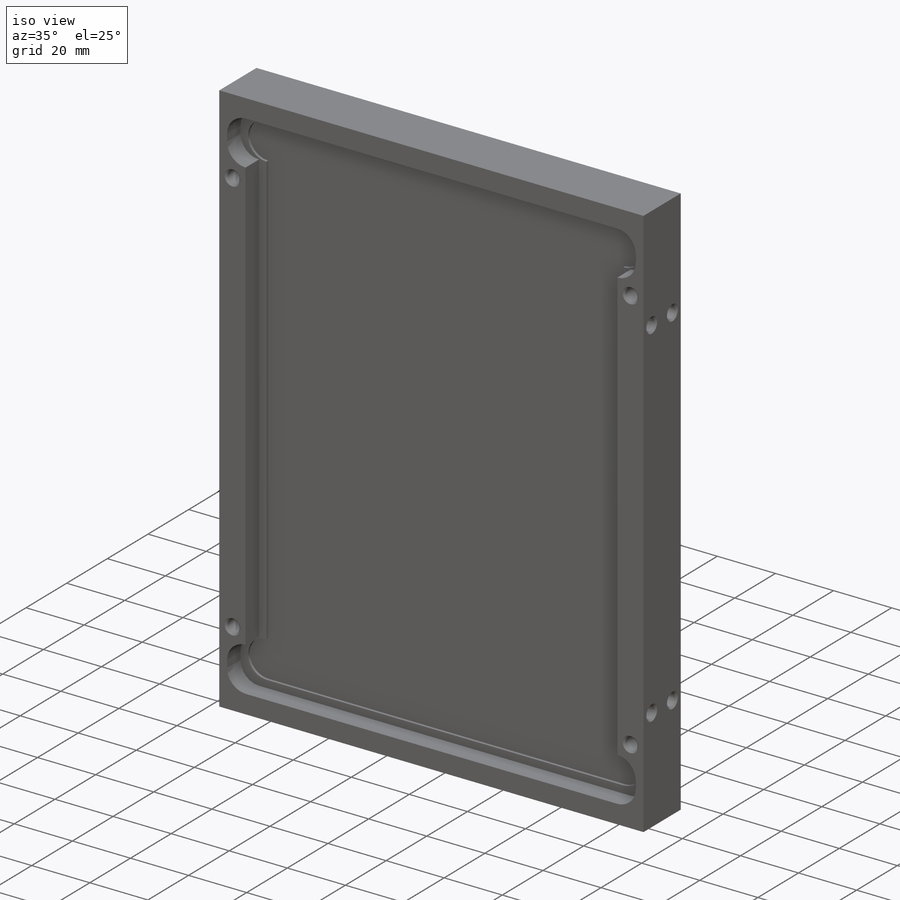
[diagram: iso view]
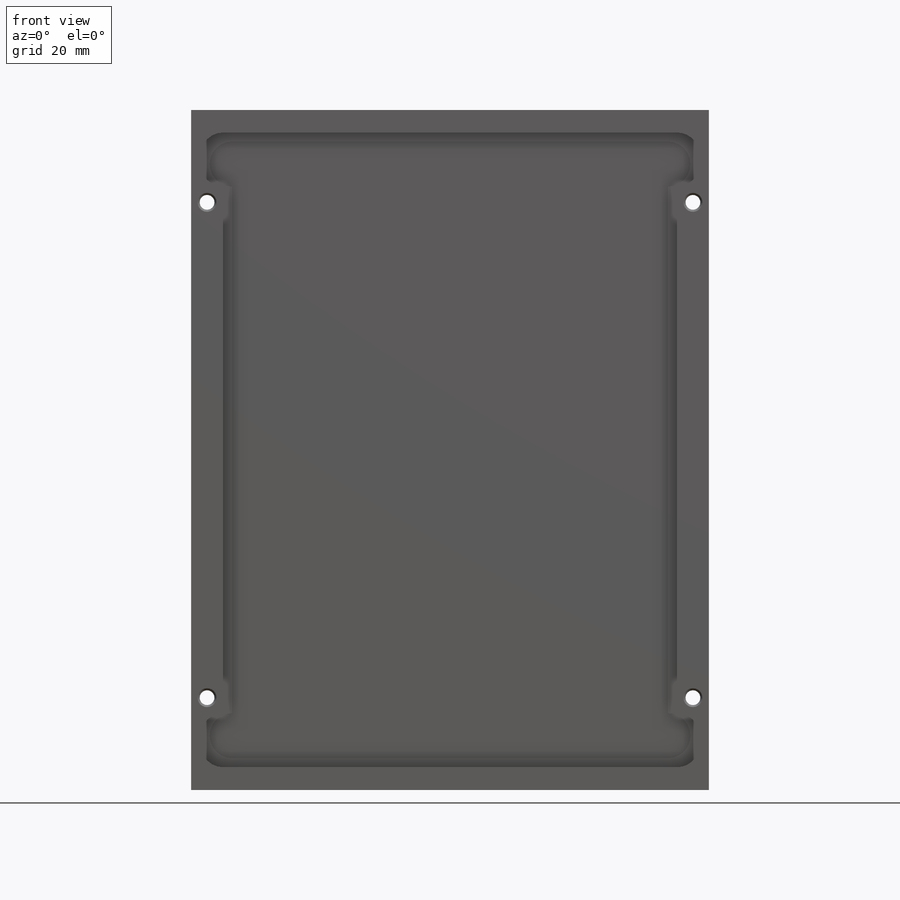
[diagram: front view]
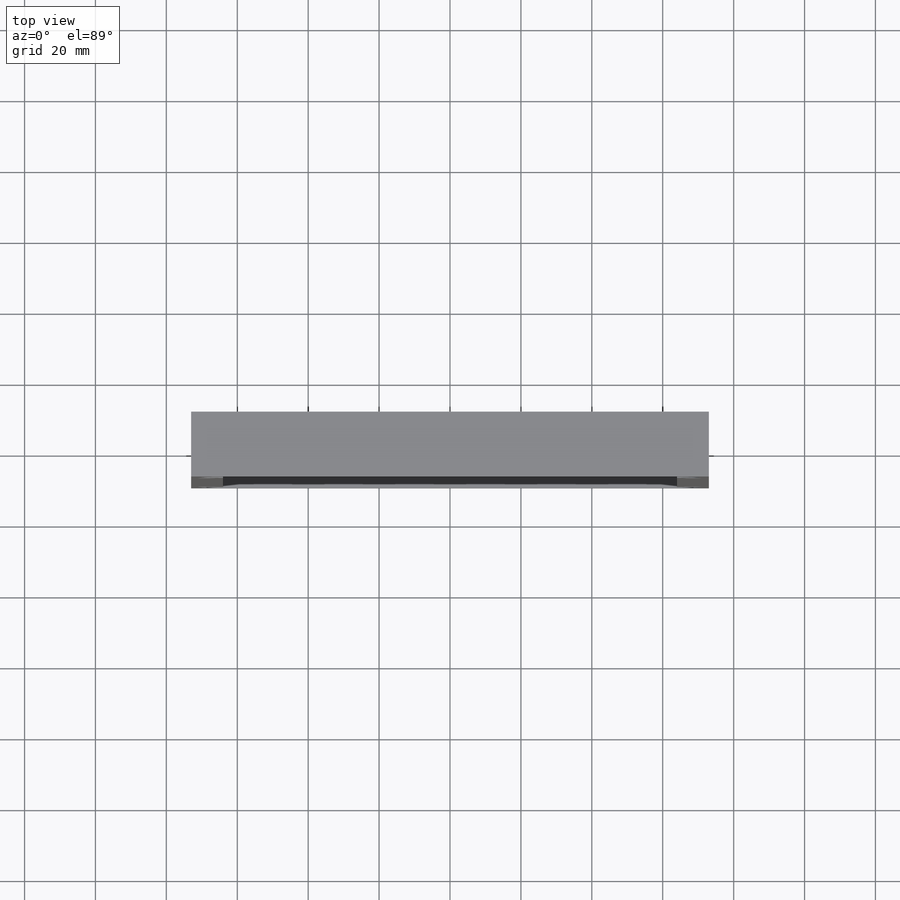
[diagram: top view]
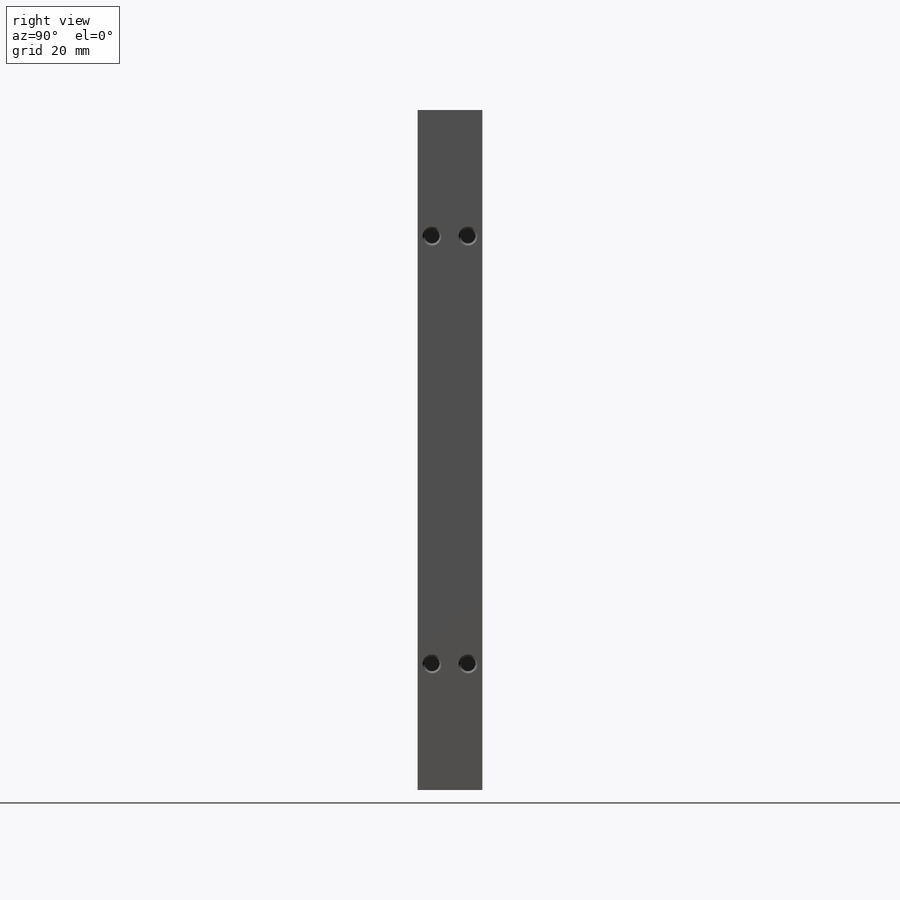
[diagram: right view]
SOLIDWORKS PART (.sldprt)
format: sldprt  version: not decoded by parser v0  size: 388,096 bytes
history: native  units: mm
features: sketch x7, cut_extrude x2, hole x2, material x1, extrude x1, mirror x1 (+11 scaffold rows collapsed)
feature tree (25):
  scaffold x11  (default folders/planes/origin — collapsed)
  material  "6061-T6 Al"
  sketch  "Sketch1"  dims[D1=191.77mm D2=146.05mm]
  extrude  "Boss-Extrude1"  Depth=18.288mm
  sketch  "Sketch4"  dims[c1.D1=6.35mm c1.D3=2.54mm c1.D2=178.9938mm c2.D3=127.9906mm c2.D2=178.9938mm c3.D3=127.9906mm c3.D4=2.54mm]
  cut_extrude  "Cut-Extrude1"  Depth=6.604mm
  sketch  "Sketch5"  dims[c1.D3=12.7mm c1.D1=176.4538mm c1.D2=2.54mm c2.D1=~15.450217mm c2.D2=2.54mm]
  cut_extrude  "Cut-Extrude3"  Depth=0.889mm
  mirror  "Mirror1"
  hole  "#8-32 Tapped Hole1"  Diameter=4.1656mm Depth=18.288mm
  sketch  "3DSketch1"  dims[D1=137.033mm D2=139.7mm]
  sketch  "Sketch8"  dims[hole-wizard template sketch: 46 standard entries collapsed; hole parameters kept: c15.Thread Major Dia.=4.1656mm c15.Thru Tap Drill Depth=18.288mm c15.Near C'Sink Dia.=5.334mm c15.D4=~3.666174mm c15.Near C'Sink Angle=90.0deg c15.Far C'Sink Dia.=5.334mm c15.D6=~9.919017mm c15.Far C'Sink Angle=90.0deg]
  hole  "#8-32 Tapped Hole2"  Diameter=4.1656mm Depth=9.0297mm
  sketch  "Sketch10"  dims[c1.D1=2.54mm c1.D2=~116.567173mm c1.D3=~117.09258mm c2.D2=120.65mm]
  sketch  "Sketch9"  dims[hole-wizard template sketch: 54 standard entries collapsed; hole parameters kept: c17.Thread Major Dia.=4.1656mm c17.Thru Tap Drill Depth=9.0297mm c17.Near C'Sink Dia.=5.334mm c17.D4=~3.666174mm c17.Near C'Sink Angle=90.0deg]
decode coverage: 12 of 13 modeling features carry decoded parameters
note: ~ marks probable driven/reference dimensions
note: suppression state not decoded; provenance and decode notes live in map.json
